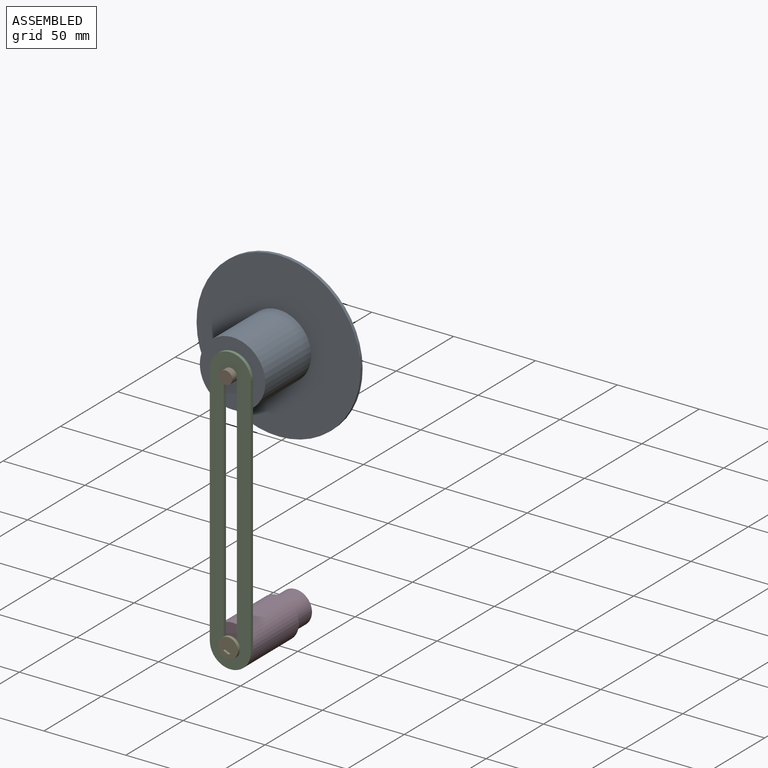
[diagram: assembled view]
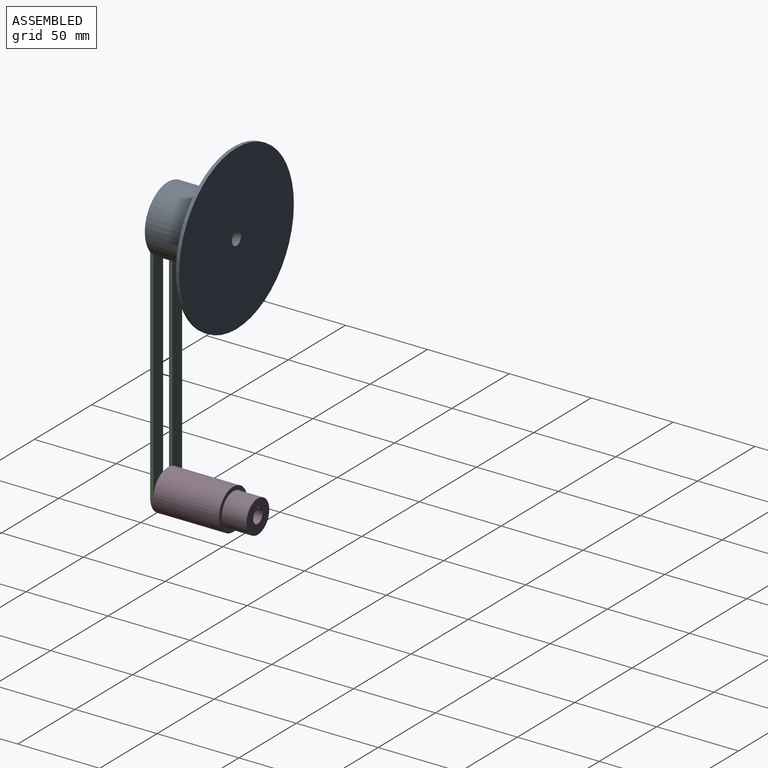
[diagram: assembled view, second angle]
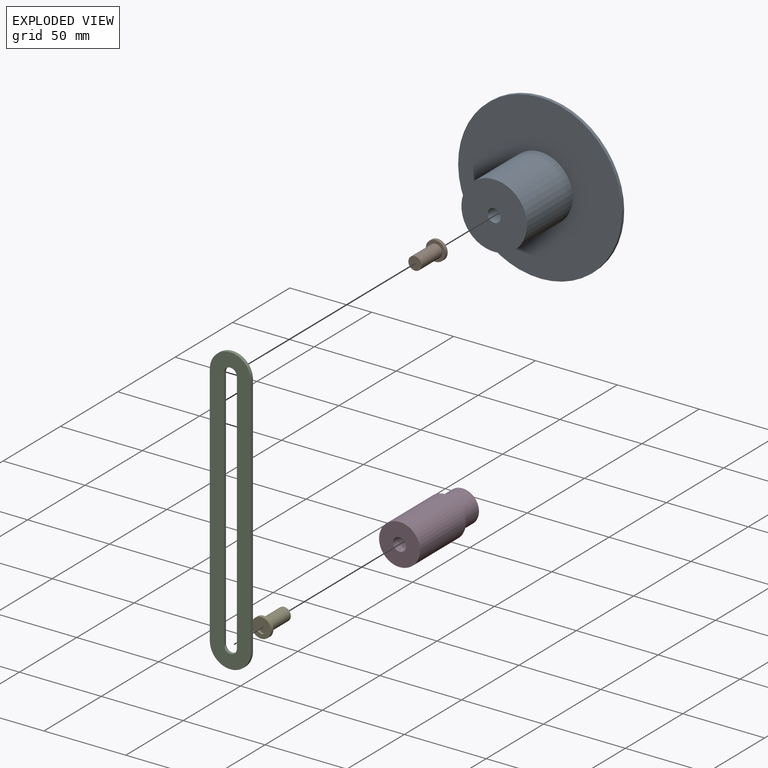
[diagram: exploded view]
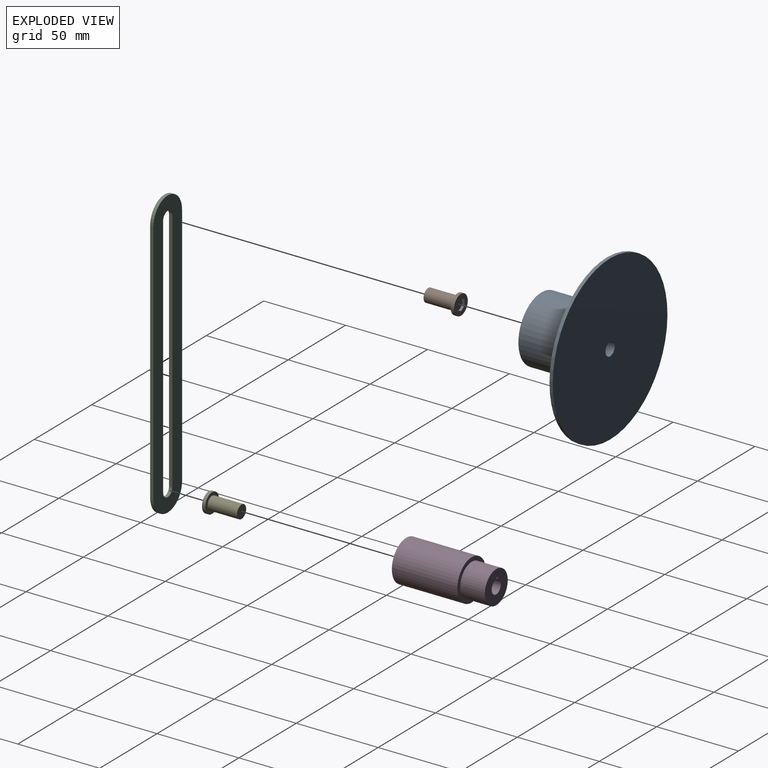
[diagram: exploded view, second angle]
ASSEMBLY  parts=5 mates=4
PART A: 6 faces, bbox 100x42x100 mm
  f0: cylinder r=50mm len=100mm, axis (0,1,0), area 628.3mm2, adj f1,f2
  f1: plane 100x100mm, normal (0,-1,0), area 6597.3mm2, adj f0,f3
  f2: plane 100x100mm, normal (0,1,0), area 7803.7mm2, adj f0,f5
  f3: cylinder r=20mm len=40mm, axis (0,1,0), area 5026.5mm2, adj f1,f4
  f4: plane 40x40mm, normal (0,-1,0), area 1206.4mm2, adj f3,f5
  f5: cylinder r=4mm len=42mm, axis (0,-1,0), area 1055.6mm2, adj f2,f4
PART B: 12 faces, bbox 12x12x20 mm
  f0: plane 12x12mm, normal (0,0,1), area 79.4mm2, adj f4,f5,f6,f7,f8,f9,f10
  f1: plane 8x8mm, normal (0,0,-1), area 50.3mm2, adj f2
  f2: cylinder r=4mm len=18mm, axis (0,0,1), area 452.4mm2, adj f1,f3
  f3: plane 12x12mm, normal (0,0,-1), area 62.8mm2, adj f2,f4
  f4: cylinder r=6mm len=12mm, axis (0,0,1), area 75.4mm2, adj f0,f3
  f5: plane 2.94x2.09mm, normal (-0.58,0.81,0), area 5.4mm2, adj f0,f6,f10,f11
  f6: plane 3.59x1.5mm, normal (-1,-0.1,0), area 5.4mm2, adj f0,f5,f7,f11
  f7: plane 3.28x1.5mm, normal (-0.42,-0.91,0), area 5.4mm2, adj f0,f6,f8,f11
  f8: plane 2.94x2.09mm, normal (0.58,-0.81,0), area 5.4mm2, adj f0,f7,f9,f11
  f9: plane 3.59x1.5mm, normal (1,0.1,0), area 5.4mm2, adj f0,f8,f10,f11
  f10: plane 3.28x1.5mm, normal (0.42,0.91,0), area 5.4mm2, adj f0,f5,f9,f11
  f11: plane 7.18x6.56mm, normal (0,0,1), area 33.7mm2, adj f5,f6,f7,f8,f9,f10
PART C: 10 faces, bbox 25x2x175 mm
  f0: plane 150x2mm, normal (1,0,0), area 300mm2, adj f1,f7,f8,f9
  f1: cylinder r=4mm len=8mm, axis (0,1,0), area 25.1mm2, adj f0,f2,f8,f9
  f2: plane 150x2mm, normal (-1,0,0), area 300mm2, adj f1,f7,f8,f9
  f3: plane 150x2mm, normal (1,0,0), area 300mm2, adj f4,f6,f8,f9
  f4: cylinder r=12.5mm len=25mm, axis (0,1,0), area 78.5mm2, adj f3,f5,f8,f9
  f5: plane 150x2mm, normal (-1,0,0), area 300mm2, adj f4,f6,f8,f9
  f6: cylinder r=12.5mm len=25mm, axis (0,1,0), area 78.5mm2, adj f3,f5,f8,f9
  f7: cylinder r=4mm len=8mm, axis (0,1,0), area 25.1mm2, adj f0,f2,f8,f9
  f8: plane 175x25mm, normal (0,-1,0), area 2990.6mm2, adj f0,f1,f2,f3,f4,f5,f6,f7
  f9: plane 175x25mm, normal (0,1,0), area 2990.6mm2, adj f0,f1,f2,f3,f4,f5,f6,f7
PART D: 10 faces, bbox 25x55x25 mm
  f0: cylinder r=12.5mm len=40mm, axis (0,1,0), area 3141.6mm2, adj f1,f2
  f1: plane 25x25mm, normal (0,-1,0), area 440.6mm2, adj f0,f5
  f2: plane 25x25mm, normal (0,1,0), area 176.7mm2, adj f0,f3
  f3: cylinder r=10mm len=20mm, axis (0,-1,0), area 942.5mm2, adj f2,f4
  f4: plane 20x20mm, normal (0,1,0), area 260mm2, adj f3,f5,f6,f7,f9
  f5: cylinder r=4mm len=55mm, axis (0,-1,0), area 1336.2mm2, adj f1,f4,f6,f7,f8
  f6: plane 15x1.49mm, normal (-1,0,0), area 22.4mm2, adj f4,f5,f8,f9
  f7: plane 15x1.49mm, normal (1,0,0), area 22.4mm2, adj f4,f5,f8,f9
  f8: plane 3x1.49mm, normal (0,1,0), area 3.9mm2, adj f5,f6,f7,f9
  f9: plane 15x3mm, normal (0,0,-1), area 45mm2, adj f4,f6,f7,f8
PART E: same geometry as B
PLACE A rot(axis=(0,-1,0),113.2deg) t=(-11,0.81,150.23)mm
PLACE B rot(axis=(-1,0,0),90deg) t=(-11,-47.19,150.23)mm
PLACE C t=(-11,-41.19,75.23)mm
PLACE D t=(-11,-1.19,0.23)mm fixed
PLACE E rot(axis=(1,0,0),90deg) t=(-11,-25.19,0.23)mm
MATE fastened E.f2 <-> D.f5  axis (0,1,0) through (-11,-43.19,0.23)mm
MATE fastened B.f2 <-> C.f1  axis (0,1,0) through (-11,-38.19,150.23)mm
MATE revolute A.f3 <-> C.f1  axis (0,1,0) through (-11,-41.19,150.23)mm
MATE fastened D.f0 <-> C.f6  axis (0,-1,0) through (-11,-41.19,0.23)mm
